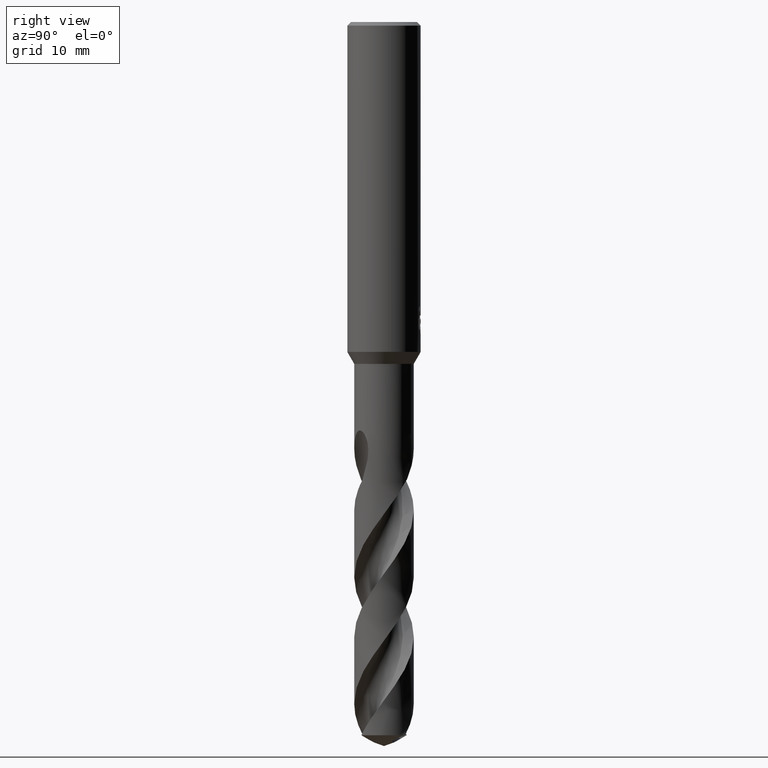
[diagram: clean part render]
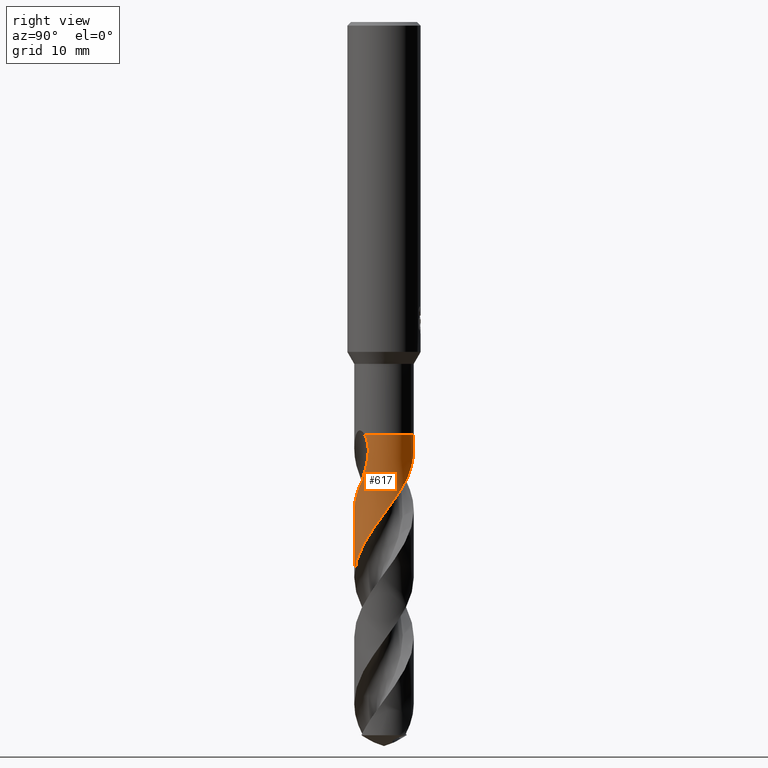
[diagram: same view with one face highlighted and labeled with its STEP entity id]
A machine part, right view. The second image highlights one B-rep face of the part: STEP entity #617.
In plain terms, the highlighted conical surface has half-angle 0 deg.
Its self-contained STEP definition (entity closure, byte-faithful):
#281=EDGE_CURVE('',#633,#305,#773,.T.);
#287=VERTEX_POINT('',#781);
#305=VERTEX_POINT('',#802);
#321=EDGE_CURVE('',#703,#287,#821,.T.);
#345=VERTEX_POINT('',#846);
#353=EDGE_CURVE('',#633,#367,#854,.T.);
#367=VERTEX_POINT('',#868);
#379=EDGE_CURVE('',#447,#345,#880,.T.);
#391=EDGE_CURVE('',#345,#629,#892,.T.);
#431=EDGE_CURVE('',#703,#447,#935,.T.);
#447=VERTEX_POINT('',#952);
#613=EDGE_CURVE('',#367,#287,#1134,.T.);
#617=ADVANCED_FACE('',(#1139),#1140,.T.);
#629=VERTEX_POINT('',#1152);
#633=VERTEX_POINT('',#1156);
#703=VERTEX_POINT('',#1232);
#731=EDGE_CURVE('',#629,#305,#1263,.T.);
#773=LINE('',#1321,#1322);
#781=CARTESIAN_POINT('',(-9.60101241223351E-013,3.24990446210022,-46.4643317463092));
#802=CARTESIAN_POINT('',(-1.36626692619938E-012,-3.24992530701125,-53.3050263650971));
#821=LINE('',#1618,#1619);
#846=CARTESIAN_POINT('',(2.64425046474744,-1.88940511039973,-48.1395027681755));
#854=B_SPLINE_CURVE_WITH_KNOTS('',3,(#1746,#1747,#1748,#1749,#1750,#1751,#1752,#1753,#1754,#1755,#1756,#1757,#1758,#1759,#1760,#1761,#1762,#1763,#1764,#1765,#1766,#1767,#1768,#1769,#1770,#1771,#1772,#1773,#1774,#1775,#1776,#1777,#1778,#1779,#1780,#1781,#1782,#1783,#1784,#1785,#1786,#1787,#1788,#1789,#1790,#1791,#1792,#1793,#1794,#1795,#1796,#1797,#1798,#1799,#1800,#1801,#1802,#1803,#1804,#1805,#1806,#1807,#1808,#1809,#1810,#1811,#1812,#1813,#1814,#1815,#1816,#1817,#1818,#1819,#1820,#1821,#1822,#1823),.UNSPECIFIED.,.F.,.F.,(4,2,2,2,2,2,2,2,2,2,2,2,2,2,2,2,2,2,2,2,2,2,2,2,2,2,2,2,2,2,2,2,2,2,2,2,2,2,4),(0.0,0.983665416882078,2.75910310560448,3.65809977348311,5.26265275473335,5.37314956139661,6.97835682773094,8.40005113678401,9.27804698981202,10.7147006107233,11.6196586660528,12.3349700130721,14.1330428596912,14.5902122730115,16.3844434175321,17.3244263969569,18.9360975183697,19.055251787107,20.6870175277749,22.1129067307252,23.0142932664634,24.4612426965239,25.3578445437601,26.0747161880654,27.8691787855185,28.3269785736588,31.3908081442947,31.6462387707913,32.2769354405363,32.9608347499522,33.4189616826828,33.644807162001,33.8778475340555,33.9319479964582,34.0005491272884,34.0628470322351,34.1439078440111,34.3098266905783,34.5597196612426),.UNSPECIFIED.);
#868=CARTESIAN_POINT('',(2.07092301992372,2.50464074912461,-49.919));
#880=B_SPLINE_CURVE_WITH_KNOTS('',3,(#1901,#1902,#1903,#1904,#1905,#1906,#1907,#1908),.UNSPECIFIED.,.F.,.F.,(4,2,2,4),(0.0,0.60809610319832,1.45884024531531,2.27073513249189),.UNSPECIFIED.);
#892=B_SPLINE_CURVE_WITH_KNOTS('',3,(#1948,#1949,#1950,#1951),.UNSPECIFIED.,.F.,.F.,(4,4),(0.0,1.8676977938798),.UNSPECIFIED.);
#935=CIRCLE('',#2364,3.2499);
#952=CARTESIAN_POINT('',(2.46162340967798,-2.12185301067848,-45.0));
#1134=B_SPLINE_CURVE_WITH_KNOTS('',3,(#4438,#4439,#4440,#4441,#4442,#4443,#4444,#4445,#4446,#4447,#4448,#4449,#4450,#4451),.UNSPECIFIED.,.F.,.F.,(4,2,2,2,2,2,4),(0.0,1.59232764494869,2.46176709049833,3.24924955706908,4.16409689058829,5.26302576220037,5.83049748988357),.UNSPECIFIED.);
#1139=FACE_OUTER_BOUND('',#4456,.T.);
#1140=CONICAL_SURFACE('',#4457,3.24995,3.04719216316822E-006);
#1152=CARTESIAN_POINT('',(2.25894124389054,-2.33647852403478,-49.919));
#1156=CARTESIAN_POINT('',(1.50950780938607E-010,-3.24994747932707,-60.5813366930118));
#1232=CARTESIAN_POINT('',(-4.04827718450915E-016,3.2499,-45.0));
#1263=B_SPLINE_CURVE_WITH_KNOTS('',3,(#5122,#5123,#5124,#5125,#5126,#5127,#5128,#5129,#5130,#5131,#5132,#5133,#5134,#5135,#5136,#5137,#5138,#5139,#5140,#5141,#5142,#5143,#5144,#5145,#5146,#5147,#5148,#5149,#5150,#5151,#5152,#5153,#5154,#5155,#5156,#5157,#5158,#5159,#5160,#5161,#5162,#5163,#5164,#5165,#5166,#5167,#5168,#5169,#5170,#5171,#5172,#5173,#5174,#5175,#5176,#5177,#5178,#5179,#5180,#5181,#5182,#5183,#5184,#5185,#5186,#5187,#5188,#5189,#5190,#5191,#5192,#5193,#5194,#5195,#5196,#5197,#5198,#5199,#5200,#5201,#5202,#5203,#5204,#5205,#5206,#5207,#5208,#5209,#5210,#5211,#5212,#5213,#5214,#5215,#5216,#5217),.UNSPECIFIED.,.F.,.F.,(4,2,2,2,2,2,2,2,2,2,2,2,2,2,2,2,2,2,2,2,2,2,2,2,2,2,2,2,2,2,2,2,2,2,2,2,2,2,2,2,2,2,2,2,2,2,2,4),(0.0,0.135249485326454,0.219680533139363,0.267645933331988,0.622783640011619,0.74758951477977,0.827670072768212,0.903021253773096,1.00423111194663,1.11681033730767,1.14583017772131,1.56777222114131,1.84797223710132,2.13015401203247,2.43184822252786,3.25696376667802,3.63748513035331,5.36107719922063,5.80623134196755,6.69666142386627,6.91572042747436,8.14896255463009,8.59549307607234,9.36676837025773,10.7090442061226,11.5948573903096,12.930456014198,13.3749544584976,13.6960002687981,14.8129194788154,16.6063229171154,17.4957084059555,18.3805178595388,19.7126591181381,20.5998018008915,22.4584431782845,22.7685291301145,23.9192283493874,24.8147372212459,24.9595861601162,27.0923465646241,27.1639217915918,29.189153120608,29.8335877555044,31.0343879654998,31.9432091928418,33.3073735806866,34.6784301415708),.UNSPECIFIED.);
#1321=CARTESIAN_POINT('',(3.91148042438323E-016,-3.24995,-61.4085483693174));
#1322=VECTOR('',#5240,1.0);
#1618=CARTESIAN_POINT('',(-4.04833841482684E-016,3.24995,-61.4085483693174));
#1619=VECTOR('',#5325,1.0);
#1746=CARTESIAN_POINT('',(2.28421874379143,2.31189202397343,-77.8170967386348));
#1747=CARTESIAN_POINT('',(2.14590276518028,2.44855123339847,-77.5530819647992));
#1748=CARTESIAN_POINT('',(1.99545838939112,2.57264800154993,-77.2894104769452));
#1749=CARTESIAN_POINT('',(1.54484739563324,2.8808561675093,-76.5501218561823));
#1750=CARTESIAN_POINT('',(1.22492480408191,3.03070040655266,-76.0838669346623));
#1751=CARTESIAN_POINT('',(0.716451751179353,3.17501424094617,-75.3676131188707));
#1752=CARTESIAN_POINT('',(0.541682498568522,3.20947791185344,-75.1251176574094));
#1753=CARTESIAN_POINT('',(0.04882101638487,3.26513441709336,-74.4541236833483));
#1754=CARTESIAN_POINT('',(-0.270093108556486,3.25420039107003,-74.0308232947192));
#1755=CARTESIAN_POINT('',(-0.603212290626786,3.1935915037027,-73.5705399360417));
#1756=CARTESIAN_POINT('',(-0.624592198046113,3.18947874006818,-73.5409002653958));
#1757=CARTESIAN_POINT('',(-0.956158451583376,3.12223587227196,-73.0808177550535));
#1758=CARTESIAN_POINT('',(-1.25601690323674,3.01426811157562,-72.6572665994122));
#1759=CARTESIAN_POINT('',(-1.78411354559443,2.73103309688866,-71.8483125002803));
#1760=CARTESIAN_POINT('',(-2.01363301381328,2.56649409830434,-71.4660110345702));
#1761=CARTESIAN_POINT('',(-2.34627151015276,2.25556909572054,-70.8514464427821));
#1762=CARTESIAN_POINT('',(-2.46351264429661,2.12688998765172,-70.6179629532851));
#1763=CARTESIAN_POINT('',(-2.74395229984116,1.76463157425572,-69.9993640146617));
#1764=CARTESIAN_POINT('',(-2.88769967282052,1.5180483272136,-69.6131660669389));
#1765=CARTESIAN_POINT('',(-3.06685542060761,1.09033920238705,-68.9874968532913));
#1766=CARTESIAN_POINT('',(-3.12226936465784,0.919676410715333,-68.7469040150886));
#1767=CARTESIAN_POINT('',(-3.19578684319758,0.607686530485753,-68.3137857986175));
#1768=CARTESIAN_POINT('',(-3.2191388929249,0.468250315155995,-68.1216847263187));
#1769=CARTESIAN_POINT('',(-3.26907893874983,-0.0237117549168886,-67.4503354717168));
#1770=CARTESIAN_POINT('',(-3.24712728454265,-0.379068083193536,-66.9796959065386));
#1771=CARTESIAN_POINT('',(-3.14823286558493,-0.811787948284176,-66.3782118076615));
#1772=CARTESIAN_POINT('',(-3.12459882107033,-0.898441784640264,-66.2558909699275));
#1773=CARTESIAN_POINT('',(-2.99087422939086,-1.31940815644719,-65.6560199549965));
#1774=CARTESIAN_POINT('',(-2.83053089017284,-1.63538271943371,-65.1874666672174));
#1775=CARTESIAN_POINT('',(-2.51339314748647,-2.06861303810501,-64.4602858473064));
#1776=CARTESIAN_POINT('',(-2.39177245236522,-2.20814264598366,-64.2087398275514));
#1777=CARTESIAN_POINT('',(-2.03061457373249,-2.55723991457581,-63.5298654490194));
#1778=CARTESIAN_POINT('',(-1.77191363696668,-2.74267808629556,-63.1076777429755));
#1779=CARTESIAN_POINT('',(-1.4705438809965,-2.89831769360856,-62.646265032537));
#1780=CARTESIAN_POINT('',(-1.44970239562173,-2.90879864731334,-62.6144959299604));
#1781=CARTESIAN_POINT('',(-1.14081081787012,-3.05997712321538,-62.1468048111924));
#1782=CARTESIAN_POINT('',(-0.833271887258044,-3.1577414479249,-61.718164945304));
#1783=CARTESIAN_POINT('',(-0.238092548507583,-3.25338309925119,-60.9041039747348));
#1784=CARTESIAN_POINT('',(0.0439367848343066,-3.26180085387165,-60.5222397702243));
#1785=CARTESIAN_POINT('',(0.500743492766916,-3.21605634804081,-59.9027652924042));
#1786=CARTESIAN_POINT('',(0.675845841733038,-3.18385490556788,-59.6640152294981));
#1787=CARTESIAN_POINT('',(1.12265763055415,-3.06318305186809,-59.0387007361528));
#1788=CARTESIAN_POINT('',(1.38704070785662,-2.95292801429162,-58.6513248311665));
#1789=CARTESIAN_POINT('',(1.78684933719647,-2.72040219913218,-58.027542804639));
#1790=CARTESIAN_POINT('',(1.93215750699758,-2.61917338017558,-57.790035989326));
#1791=CARTESIAN_POINT('',(2.17732605668553,-2.41687614246588,-57.3602012000474));
#1792=CARTESIAN_POINT('',(2.28003374551165,-2.32019728675168,-57.1682558325366));
#1793=CARTESIAN_POINT('',(2.61617444088352,-1.96000987931691,-56.4995897263264));
#1794=CARTESIAN_POINT('',(2.81297600492308,-1.66533890114712,-56.0311610260846));
#1795=CARTESIAN_POINT('',(2.99592026492056,-1.2627734266335,-55.4324773173598));
#1796=CARTESIAN_POINT('',(3.02964003628341,-1.17957172635793,-55.3104500805931));
#1797=CARTESIAN_POINT('',(3.26225544091535,-0.529585330352565,-54.3745091105727));
#1798=CARTESIAN_POINT('',(3.30331485715062,0.0794277238116095,-53.5861982975916));
#1799=CARTESIAN_POINT('',(3.17127972242247,0.712364496992292,-52.7060250584901));
#1800=CARTESIAN_POINT('',(3.16009711322813,0.760416345924511,-52.6385471009772));
#1801=CARTESIAN_POINT('',(3.11742740791528,0.926581034384211,-52.4045891237776));
#1802=CARTESIAN_POINT('',(3.08022544601935,1.04380250875006,-52.2384172414484));
#1803=CARTESIAN_POINT('',(2.98818811057587,1.2848077559531,-51.8937878422083));
#1804=CARTESIAN_POINT('',(2.93474434487216,1.40214380118168,-51.726675214645));
#1805=CARTESIAN_POINT('',(2.83389504099348,1.59327711230693,-51.4381877584529));
#1806=CARTESIAN_POINT('',(2.7910862813486,1.66697078480488,-51.322147063458));
#1807=CARTESIAN_POINT('',(2.72440227469838,1.77237130923843,-51.1460570180033));
#1808=CARTESIAN_POINT('',(2.70200612416793,1.80630641295292,-51.0876398901185));
#1809=CARTESIAN_POINT('',(2.65587193564315,1.87350634340256,-50.967988880239));
#1810=CARTESIAN_POINT('',(2.63217986079799,1.90662009128798,-50.906893904255));
#1811=CARTESIAN_POINT('',(2.60274109998404,1.94622473260338,-50.8309092285958));
#1812=CARTESIAN_POINT('',(2.59507920152387,1.95649178034349,-50.8110070808922));
#1813=CARTESIAN_POINT('',(2.57005268842107,1.98930272762759,-50.7489370767954));
#1814=CARTESIAN_POINT('',(2.55560418578719,2.00784115994499,-50.714581928386));
#1815=CARTESIAN_POINT('',(2.52705492438188,2.04363158850693,-50.6495788685276));
#1816=CARTESIAN_POINT('',(2.51306843504364,2.06081461628714,-50.6189358564029));
#1817=CARTESIAN_POINT('',(2.47988499293683,2.10071210175514,-50.5490186579647));
#1818=CARTESIAN_POINT('',(2.46042562938065,2.12348814068093,-50.5100049866753));
#1819=CARTESIAN_POINT('',(2.39882581397079,2.19351709310917,-50.392530046746));
#1820=CARTESIAN_POINT('',(2.35451206584009,2.24116081546007,-50.3159935707397));
#1821=CARTESIAN_POINT('',(2.23513107904287,2.36146464429363,-50.1288839509975));
#1822=CARTESIAN_POINT('',(2.15669773820355,2.43371967258387,-50.0220319642342));
#1823=CARTESIAN_POINT('',(2.07092301992372,2.50464074912461,-49.919));
#1901=CARTESIAN_POINT('',(2.46162340967799,-2.12185301067848,-45.0));
#1902=CARTESIAN_POINT('',(2.5419163328357,-2.02870360655084,-45.1611303770719));
#1903=CARTESIAN_POINT('',(2.60523819917873,-1.94456566582923,-45.3614294227365));
#1904=CARTESIAN_POINT('',(2.71906224266369,-1.78375154538826,-45.9131545698317));
#1905=CARTESIAN_POINT('',(2.75691531136373,-1.72084836056196,-46.3032442332504));
#1906=CARTESIAN_POINT('',(2.76210888869607,-1.71250408082015,-47.155651364266));
#1907=CARTESIAN_POINT('',(2.73481013621723,-1.76266280784346,-47.6244334637378));
#1908=CARTESIAN_POINT('',(2.64425046474744,-1.88940511039974,-48.1395027681756));
#1948=CARTESIAN_POINT('',(2.64425046480006,-1.88940511032609,-48.1395027682045));
#1949=CARTESIAN_POINT('',(2.53947921024538,-2.0360371578468,-48.7354141422074));
#1950=CARTESIAN_POINT('',(2.41320289001456,-2.18733365670986,-49.3348712282063));
#1951=CARTESIAN_POINT('',(2.25894124389054,-2.33647852403478,-49.919));
#2364=AXIS2_PLACEMENT_3D('',#5401,#5402,#5403);
#4438=CARTESIAN_POINT('',(2.07092301992372,2.50464074912461,-49.919));
#4439=CARTESIAN_POINT('',(1.85654647060024,2.68189285779414,-49.4669519697939));
#4440=CARTESIAN_POINT('',(1.61005928988584,2.83945977268261,-49.0454974552605));
#4441=CARTESIAN_POINT('',(1.18025722723466,3.0325902546173,-48.3414347090896));
#4442=CARTESIAN_POINT('',(1.02559440520142,3.08814646430826,-48.0937235055493));
#4443=CARTESIAN_POINT('',(0.726187723272233,3.17117631956616,-47.614223520484));
#4444=CARTESIAN_POINT('',(0.582780528786609,3.200510437614,-47.3846691957172));
#4445=CARTESIAN_POINT('',(0.272366646031519,3.24284599269115,-46.8899250341343));
#4446=CARTESIAN_POINT('',(0.102766649129362,3.2527850685002,-46.6208623055705));
#4447=CARTESIAN_POINT('',(-0.273870383849071,3.24486181567546,-46.0452525919497));
#4448=CARTESIAN_POINT('',(-0.497177191453322,3.22035768338343,-45.7177271941473));
#4449=CARTESIAN_POINT('',(-0.846980508688187,3.13997114056217,-45.2790160117724));
#4450=CARTESIAN_POINT('',(-0.975438935405443,3.1033136391901,-45.1306945994727));
#4451=CARTESIAN_POINT('',(-1.10898202220434,3.05483369177891,-45.0));
#4456=EDGE_LOOP('',(#5659,#5660,#5661,#5662,#5663,#5664,#5665,#5666));
#4457=AXIS2_PLACEMENT_3D('',#5667,#5668,#5669);
#5122=CARTESIAN_POINT('',(2.25894124389053,-2.33647852403478,-49.919));
#5123=CARTESIAN_POINT('',(2.24052684897656,-2.35428198472741,-49.9561003817095));
#5124=CARTESIAN_POINT('',(2.22185300658175,-2.37191592960419,-49.9931688462097));
#5125=CARTESIAN_POINT('',(2.19101007202365,-2.40035099796963,-50.0532931229676));
#5126=CARTESIAN_POINT('',(2.17904769649832,-2.41121651174586,-50.0763535836552));
#5127=CARTESIAN_POINT('',(2.16008194179739,-2.42818497555539,-50.1124792815772));
#5128=CARTESIAN_POINT('',(2.15317302784159,-2.4343136899165,-50.1255507108375));
#5129=CARTESIAN_POINT('',(2.0947514246465,-2.48569271810239,-50.235318510397));
#5130=CARTESIAN_POINT('',(2.04197607362822,-2.52928097646516,-50.3294506495497));
#5131=CARTESIAN_POINT('',(1.9665428062515,-2.58752423618903,-50.4576645306796));
#5132=CARTESIAN_POINT('',(1.94669545896109,-2.60249101507637,-50.4908594992311));
#5133=CARTESIAN_POINT('',(1.91367173760324,-2.62679980139438,-50.5453267107533));
#5134=CARTESIAN_POINT('',(1.90067389934727,-2.63622034981302,-50.5665754320534));
#5135=CARTESIAN_POINT('',(1.87525887844367,-2.6543538386704,-50.6078040314297));
#5136=CARTESIAN_POINT('',(1.86286499013219,-2.66306694541759,-50.6277648822486));
#5137=CARTESIAN_POINT('',(1.83364816103116,-2.68330241775569,-50.6745348283616));
#5138=CARTESIAN_POINT('',(1.81678630823066,-2.69474784056971,-50.7013088252151));
#5139=CARTESIAN_POINT('',(1.78093546592282,-2.71859283276887,-50.7579050602103));
#5140=CARTESIAN_POINT('',(1.76195033336862,-2.73093518525419,-50.7876845074157));
#5141=CARTESIAN_POINT('',(1.73794480860507,-2.74618775818722,-50.8252157635562));
#5142=CARTESIAN_POINT('',(1.73305623415841,-2.74927550363157,-50.8328537671382));
#5143=CARTESIAN_POINT('',(1.65612611387986,-2.7975771147374,-50.9530395567987));
#5144=CARTESIAN_POINT('',(1.58290490413401,-2.83960976198972,-51.0669484397578));
#5145=CARTESIAN_POINT('',(1.45958031952283,-2.90425321799641,-51.2560439009432));
#5146=CARTESIAN_POINT('',(1.40976045181215,-2.92875857909494,-51.3317218388637));
#5147=CARTESIAN_POINT('',(1.30865190986381,-2.975319847234,-51.4834196912621));
#5148=CARTESIAN_POINT('',(1.25724954873214,-2.99740591421752,-51.55959783433));
#5149=CARTESIAN_POINT('',(1.14959325086674,-3.04039573036752,-51.7168893635436));
#5150=CARTESIAN_POINT('',(1.09350796711762,-3.06101537987745,-51.7975265529448));
#5151=CARTESIAN_POINT('',(0.881409411464351,-3.13240519400679,-52.0995190023757));
#5152=CARTESIAN_POINT('',(0.722482623535966,-3.17282104121548,-52.3195329690189));
#5153=CARTESIAN_POINT('',(0.486963074718538,-3.21411945084631,-52.6429307715849));
#5154=CARTESIAN_POINT('',(0.412265319520173,-3.22454890155914,-52.7451584819194));
#5155=CARTESIAN_POINT('',(-0.0020363774791588,-3.26778848371945,-53.309787362847));
#5156=CARTESIAN_POINT('',(-0.345115311856037,-3.24956524099615,-53.7678284561468));
#5157=CARTESIAN_POINT('',(-0.765564234871513,-3.15970483171327,-54.3493265352117));
#5158=CARTESIAN_POINT('',(-0.851066033378235,-3.13775521261534,-54.4686735899197));
#5159=CARTESIAN_POINT('',(-1.10456014270912,-3.06155753310669,-54.8268243092082));
#5160=CARTESIAN_POINT('',(-1.26919437444298,-2.99706101230687,-55.0651237290201));
#5161=CARTESIAN_POINT('',(-1.46684221504586,-2.90039932904197,-55.3625432262291));
#5162=CARTESIAN_POINT('',(-1.50546748173227,-2.88053986265413,-55.4212432697571));
#5163=CARTESIAN_POINT('',(-1.75882023301652,-2.74379016200025,-55.8107166771868));
#5164=CARTESIAN_POINT('',(-1.96025427383916,-2.60371164207534,-56.1410731825841));
#5165=CARTESIAN_POINT('',(-2.2106519164384,-2.3838923707546,-56.5915036849123));
#5166=CARTESIAN_POINT('',(-2.27481252612795,-2.32274882158429,-56.7111510112347));
#5167=CARTESIAN_POINT('',(-2.44279855745943,-2.14901140640569,-57.0376228211857));
#5168=CARTESIAN_POINT('',(-2.54120656407969,-2.03168175251717,-57.2439576552478));
#5169=CARTESIAN_POINT('',(-2.78713749220497,-1.69255649828959,-57.8110536047244));
#5170=CARTESIAN_POINT('',(-2.91639671424647,-1.45866385345717,-58.1703014006017));
#5171=CARTESIAN_POINT('',(-3.08122855458382,-1.04835914923436,-58.767807019371));
#5172=CARTESIAN_POINT('',(-3.13338238947264,-0.880279626213496,-59.0045836065486));
#5173=CARTESIAN_POINT('',(-3.22945768043692,-0.450416938907479,-59.6006852150708));
#5174=CARTESIAN_POINT('',(-3.25544755371832,-0.185712941741548,-59.9582697070043));
#5175=CARTESIAN_POINT('',(-3.2468257844343,0.167518872520812,-60.435753968449));
#5176=CARTESIAN_POINT('',(-3.24108179732429,0.255604820015791,-60.5548937241907));
#5177=CARTESIAN_POINT('',(-3.22502594324496,0.406733353778855,-60.7602200339309));
#5178=CARTESIAN_POINT('',(-3.21643292399513,0.469872817595242,-60.8462735663025));
#5179=CARTESIAN_POINT('',(-3.16966961043203,0.751314902703784,-61.2321620973944));
#5180=CARTESIAN_POINT('',(-3.11107263753648,0.965675993945784,-61.5318094584125));
#5181=CARTESIAN_POINT('',(-2.90273582826825,1.50431783231805,-62.3129259977301));
#5182=CARTESIAN_POINT('',(-2.72073252245516,1.81281702548434,-62.7901641911466));
#5183=CARTESIAN_POINT('',(-2.37931832460779,2.22084875675233,-63.5104465176181));
#5184=CARTESIAN_POINT('',(-2.25524211927686,2.34676148160909,-63.7487668010995));
#5185=CARTESIAN_POINT('',(-1.98837190680043,2.57671748101882,-64.2247819039007));
#5186=CARTESIAN_POINT('',(-1.84628074601108,2.6803527159929,-64.461426108328));
#5187=CARTESIAN_POINT('',(-1.47118014994205,2.90993288669831,-65.0566403950584));
#5188=CARTESIAN_POINT('',(-1.22965421184353,3.01996572582259,-65.4134786754469));
#5189=CARTESIAN_POINT('',(-0.809323732483248,3.1525070089596,-66.0090602331869));
#5190=CARTESIAN_POINT('',(-0.637358137811977,3.19171338748733,-66.246348700791));
#5191=CARTESIAN_POINT('',(-0.0980697291035393,3.26935624272098,-66.9836658798921));
#5192=CARTESIAN_POINT('',(0.273550704619776,3.25941711240907,-67.479591287745));
#5193=CARTESIAN_POINT('',(0.696066438020529,3.17515243838459,-68.061665882332));
#5194=CARTESIAN_POINT('',(0.756094261766842,3.16139520517828,-68.1448481123903));
#5195=CARTESIAN_POINT('',(1.03681966162062,3.0886095778341,-68.5371498137383));
#5196=CARTESIAN_POINT('',(1.25135530256328,3.00809862081639,-68.8460003378586));
#5197=CARTESIAN_POINT('',(1.61468885388081,2.82608259328641,-69.3955415862501));
#5198=CARTESIAN_POINT('',(1.76692546855706,2.73349059404518,-69.6353513165952));
#5199=CARTESIAN_POINT('',(1.9341305023056,2.61195539140053,-69.9146673843151));
#5200=CARTESIAN_POINT('',(1.95717714627756,2.59473112224086,-69.9535493965614));
#5201=CARTESIAN_POINT('',(2.31591565567765,2.31912491749617,-70.5652890386672));
#5202=CARTESIAN_POINT('',(2.59837851019939,1.997622606945,-71.133814691752));
#5203=CARTESIAN_POINT('',(2.81825243443134,1.61865220409433,-71.7258515677126));
#5204=CARTESIAN_POINT('',(2.82530958282181,1.60630254514845,-71.7450723049886));
#5205=CARTESIAN_POINT('',(3.0296977054063,1.24311899511064,-72.3084072920081));
#5206=CARTESIAN_POINT('',(3.1603467313901,0.858404668767414,-72.8496858327959));
#5207=CARTESIAN_POINT('',(3.23544565927352,0.33276924147268,-73.567053546469));
#5208=CARTESIAN_POINT('',(3.24604049370364,0.20500694598876,-73.7401217325144));
#5209=CARTESIAN_POINT('',(3.25472967167639,-0.161436435124462,-74.2363011055963));
#5210=CARTESIAN_POINT('',(3.2341168664748,-0.399962747484913,-74.5583436518617));
#5211=CARTESIAN_POINT('',(3.15223371749962,-0.811508797381567,-75.1252404501682));
#5212=CARTESIAN_POINT('',(3.10226032121521,-0.985407438735069,-75.3685973434545));
#5213=CARTESIAN_POINT('',(2.9419050221819,-1.40751501462133,-75.9799738412567));
#5214=CARTESIAN_POINT('',(2.81427975240161,-1.64800627259717,-76.3462207952397));
#5215=CARTESIAN_POINT('',(2.50125614467754,-2.0929819129734,-77.0816124295922));
#5216=CARTESIAN_POINT('',(2.31688179350542,-2.2954196731263,-77.4484895812276));
#5217=CARTESIAN_POINT('',(2.10937611107325,-2.47245473609396,-77.8170967386348));
#5240=DIRECTION('',(-3.73161088432779E-022,3.04719216316351E-006,0.999999999995357));
#5325=DIRECTION('',(-3.73161088432779E-022,3.04719216316351E-006,-0.999999999995357));
#5401=CARTESIAN_POINT('',(0.0,0.0,-45.0));
#5402=DIRECTION('',(0.0,0.0,-1.0));
#5403=DIRECTION('',(0.0,1.0,0.0));
#5659=ORIENTED_EDGE('',*,*,#321,.F.);
#5660=ORIENTED_EDGE('',*,*,#431,.T.);
#5661=ORIENTED_EDGE('',*,*,#379,.T.);
#5662=ORIENTED_EDGE('',*,*,#391,.T.);
#5663=ORIENTED_EDGE('',*,*,#731,.T.);
#5664=ORIENTED_EDGE('',*,*,#281,.F.);
#5665=ORIENTED_EDGE('',*,*,#353,.T.);
#5666=ORIENTED_EDGE('',*,*,#613,.T.);
#5667=CARTESIAN_POINT('',(0.0,0.0,-61.4085483693174));
#5668=DIRECTION('',(0.0,-0.0,-1.0));
#5669=DIRECTION('',(0.0,1.0,0.0));